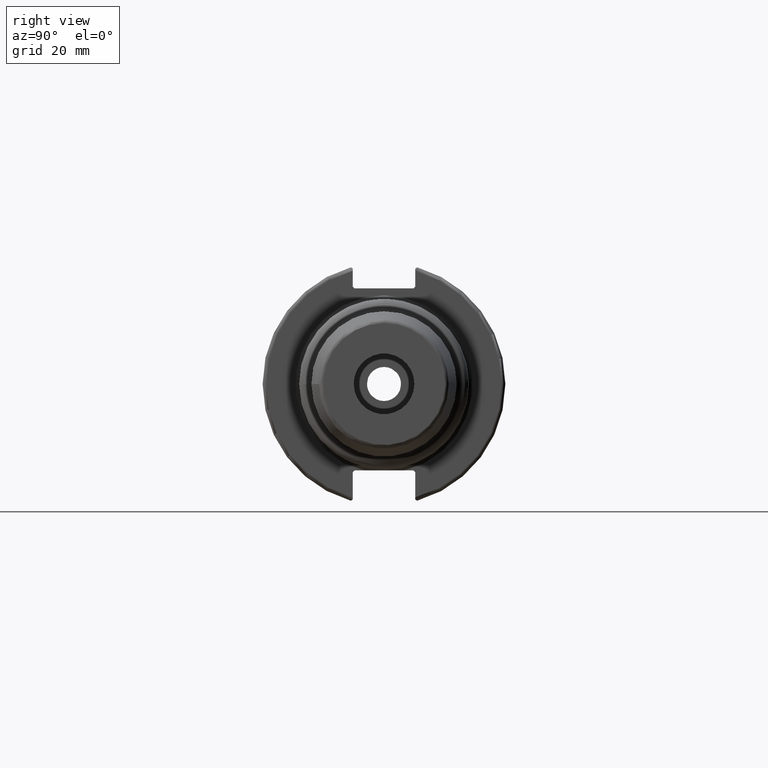
[diagram: clean part render]
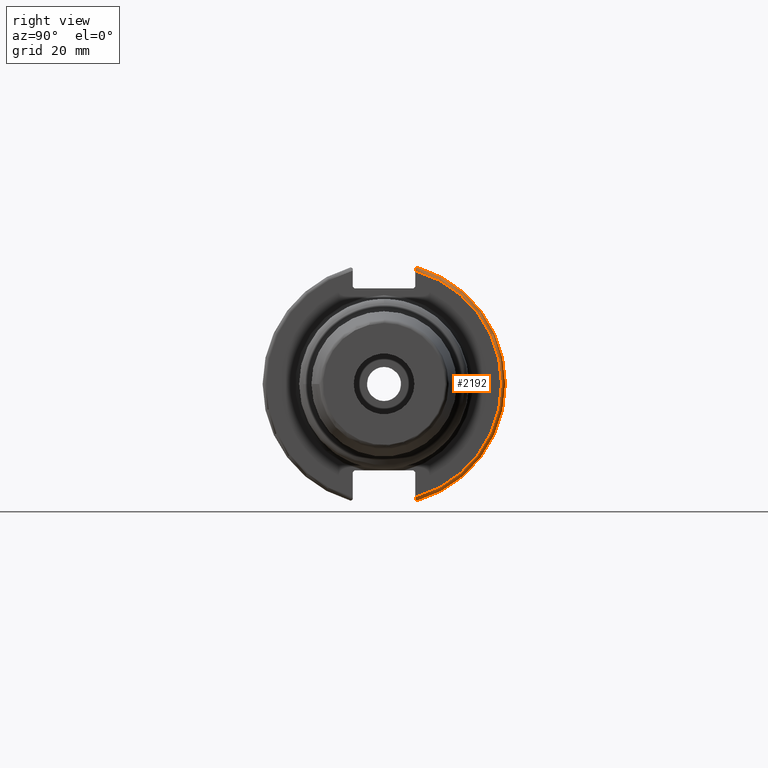
[diagram: same view with one face highlighted and labeled with its STEP entity id]
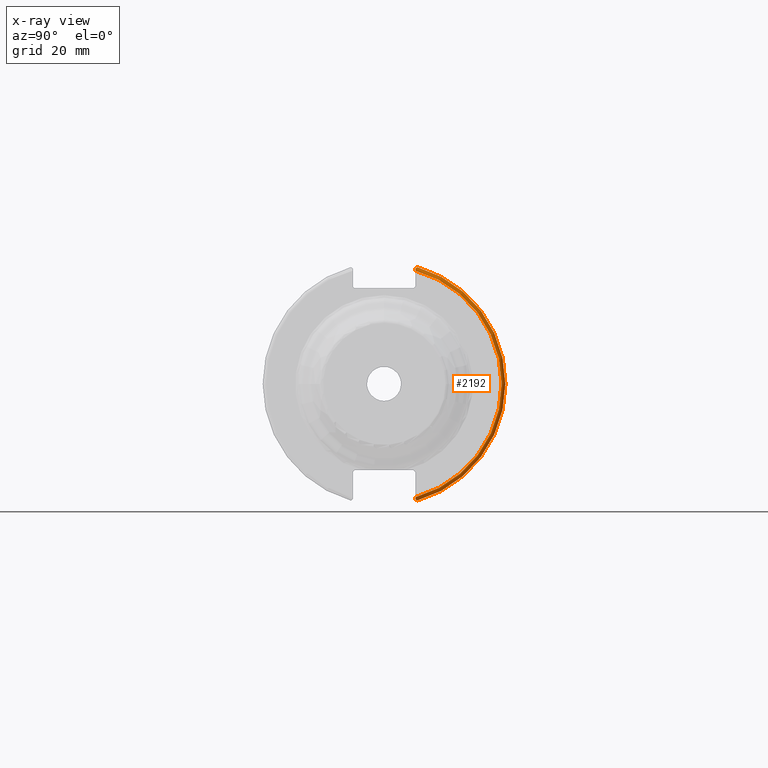
[diagram: x-ray of the same camera — body ghosted, the highlighted face saturated]
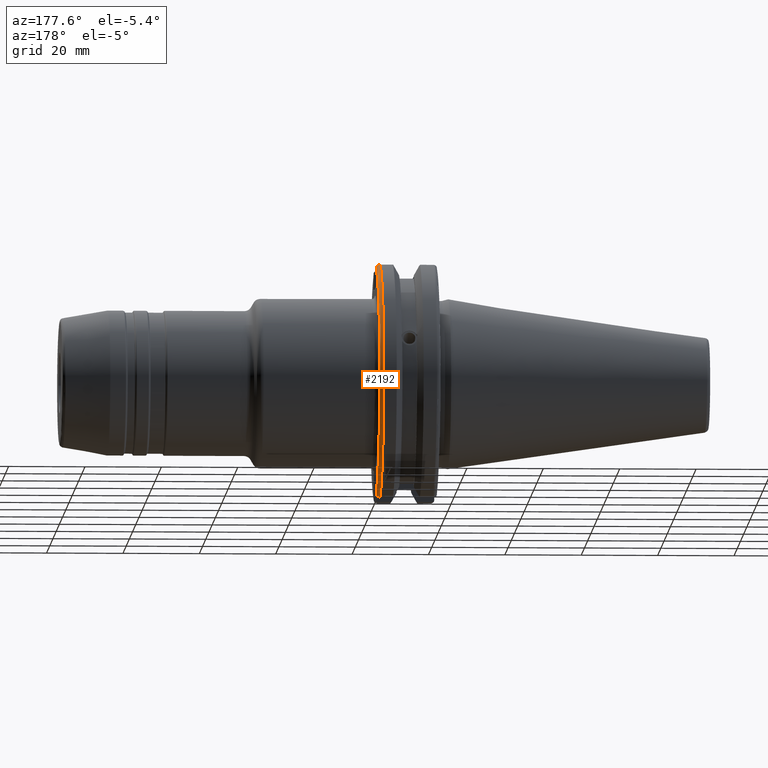
[diagram: same view with one face highlighted and labeled with its STEP entity id]
A machine part, right view. The second image highlights one B-rep face of the part: STEP entity #2192.
The next image is the same camera in x-ray: the body ghosted, the highlighted face saturated — about 0% of this face is hidden behind the body in this view.
A second angle (auxiliary view) of the same face is appended — the face is thin or edge-on in the first view.
In plain terms, the highlighted toroidal blend (fillet) surface has major radius 30.75 mm and minor (blend) radius 1 mm.
Its self-contained STEP definition (entity closure, byte-faithful):
#118=TOROIDAL_SURFACE('',#2486,30.75,1.);
#154=B_SPLINE_CURVE_WITH_KNOTS('',3,(#3989,#3990,#3991,#3992,#3993,#3994),
 .UNSPECIFIED.,.F.,.F.,(4,2,4),(0.0977210450333169,0.111963554372601,0.150804064902975),
 .UNSPECIFIED.);
#155=B_SPLINE_CURVE_WITH_KNOTS('',3,(#3998,#3999,#4000,#4001,#4002,#4003),
 .UNSPECIFIED.,.F.,.F.,(4,2,4),(0.452741154494497,0.491581665024871,0.505824174364157),
 .UNSPECIFIED.);
#156=B_SPLINE_CURVE_WITH_KNOTS('',3,(#4005,#4006,#4007,#4008,#4009,#4010,
#4011,#4012),.UNSPECIFIED.,.F.,.F.,(4,2,2,4),(-0.104302157163828,-0.0778717450894463,
-0.0364423539742873,0.),.UNSPECIFIED.);
#157=B_SPLINE_CURVE_WITH_KNOTS('',3,(#4015,#4016,#4017,#4018,#4019,#4020,
#4021,#4022),.UNSPECIFIED.,.F.,.F.,(4,2,2,4),(0.,0.0343524753874978,0.0729784742461449,
0.104180282751877),.UNSPECIFIED.);
#234=FACE_OUTER_BOUND('',#354,.T.);
#354=EDGE_LOOP('',(#1841,#1842,#1843,#1844,#1845,#1846));
#759=CIRCLE('',#2487,30.75);
#760=CIRCLE('',#2488,31.75);
#981=VERTEX_POINT('',#3987);
#982=VERTEX_POINT('',#3988);
#983=VERTEX_POINT('',#3995);
#984=VERTEX_POINT('',#3997);
#985=VERTEX_POINT('',#4004);
#986=VERTEX_POINT('',#4013);
#1289=EDGE_CURVE('',#981,#982,#154,.T.);
#1290=EDGE_CURVE('',#982,#983,#759,.T.);
#1291=EDGE_CURVE('',#983,#984,#155,.T.);
#1292=EDGE_CURVE('',#984,#985,#156,.T.);
#1293=EDGE_CURVE('',#985,#986,#760,.T.);
#1294=EDGE_CURVE('',#986,#981,#157,.T.);
#1841=ORIENTED_EDGE('',*,*,#1289,.T.);
#1842=ORIENTED_EDGE('',*,*,#1290,.T.);
#1843=ORIENTED_EDGE('',*,*,#1291,.T.);
#1844=ORIENTED_EDGE('',*,*,#1292,.T.);
#1845=ORIENTED_EDGE('',*,*,#1293,.T.);
#1846=ORIENTED_EDGE('',*,*,#1294,.T.);
#2192=ADVANCED_FACE('',(#234),#118,.T.);
#2486=AXIS2_PLACEMENT_3D('',#3986,#3082,#3083);
#2487=AXIS2_PLACEMENT_3D('',#3996,#3084,#3085);
#2488=AXIS2_PLACEMENT_3D('',#4014,#3086,#3087);
#3082=DIRECTION('center_axis',(1.,0.,0.));
#3083=DIRECTION('ref_axis',(0.,0.,-1.));
#3084=DIRECTION('center_axis',(-1.,0.,0.));
#3085=DIRECTION('ref_axis',(0.,1.,-6.12323399573677E-17));
#3086=DIRECTION('center_axis',(1.,0.,0.));
#3087=DIRECTION('ref_axis',(0.,1.,-6.12323399573677E-17));
#3986=CARTESIAN_POINT('Origin',(18.05,0.,0.));
#3987=CARTESIAN_POINT('',(18.9058722749097,8.19,30.1755016258903));
#3988=CARTESIAN_POINT('',(19.05,8.19,29.6392712461019));
#3989=CARTESIAN_POINT('Ctrl Pts',(18.9058722749097,8.19,30.1755016258903));
#3990=CARTESIAN_POINT('Ctrl Pts',(18.9318163728133,8.19,30.131014531546));
#3991=CARTESIAN_POINT('Ctrl Pts',(18.9539643471756,8.19,30.0852355256475));
#3992=CARTESIAN_POINT('Ctrl Pts',(19.020485567083,8.19,29.9212724384851));
#3993=CARTESIAN_POINT('Ctrl Pts',(19.05,8.19,29.7687396145364));
#3994=CARTESIAN_POINT('Ctrl Pts',(19.05,8.19,29.6392712461019));
#3995=CARTESIAN_POINT('',(19.05,8.19,-29.6392712461019));
#3996=CARTESIAN_POINT('Origin',(19.05,0.,0.));
#3997=CARTESIAN_POINT('',(18.9058722749097,8.19,-30.1755016258903));
#3998=CARTESIAN_POINT('Ctrl Pts',(19.05,8.19,-29.6392712461019));
#3999=CARTESIAN_POINT('Ctrl Pts',(19.05,8.19,-29.7687396145364));
#4000=CARTESIAN_POINT('Ctrl Pts',(19.0204855670831,8.19,-29.9212724384851));
#4001=CARTESIAN_POINT('Ctrl Pts',(18.9539643471756,8.19,-30.0852355256475));
#4002=CARTESIAN_POINT('Ctrl Pts',(18.9318163728133,8.19,-30.131014531546));
#4003=CARTESIAN_POINT('Ctrl Pts',(18.9058722749097,8.19,-30.1755016258903));
#4004=CARTESIAN_POINT('',(18.05,8.67204822802685,-30.5427254764662));
#4005=CARTESIAN_POINT('Ctrl Pts',(18.9058722749097,8.19,-30.1755016258903));
#4006=CARTESIAN_POINT('Ctrl Pts',(18.8644673620074,8.25871605728282,-30.2278494485451));
#4007=CARTESIAN_POINT('Ctrl Pts',(18.8119751533981,8.32529543089522,-30.2785695477496));
#4008=CARTESIAN_POINT('Ctrl Pts',(18.6711011886212,8.46607530335799,-30.3858155116254));
#4009=CARTESIAN_POINT('Ctrl Pts',(18.545044361706,8.551646780666,-30.4510037761381));
#4010=CARTESIAN_POINT('Ctrl Pts',(18.3129472218859,8.64410239894262,-30.5214363722497));
#4011=CARTESIAN_POINT('Ctrl Pts',(18.1714745132476,8.67204822802685,-30.5427254764662));
#4012=CARTESIAN_POINT('Ctrl Pts',(18.05,8.67204822802685,-30.5427254764662));
#4013=CARTESIAN_POINT('',(18.05,8.67204822802685,30.5427254764662));
#4014=CARTESIAN_POINT('Origin',(18.05,0.,0.));
#4015=CARTESIAN_POINT('Ctrl Pts',(18.05,8.67204822802685,30.5427254764662));
#4016=CARTESIAN_POINT('Ctrl Pts',(18.1645082512917,8.67204822802685,30.5427254764662));
#4017=CARTESIAN_POINT('Ctrl Pts',(18.2983170433775,8.6471881193939,30.5237870709558));
#4018=CARTESIAN_POINT('Ctrl Pts',(18.5184414294771,8.56482138642532,30.4610401774263));
#4019=CARTESIAN_POINT('Ctrl Pts',(18.6396724190507,8.48862804755883,30.4029961692546));
#4020=CARTESIAN_POINT('Ctrl Pts',(18.7926702662319,8.34909446036477,30.2966996242308));
#4021=CARTESIAN_POINT('Ctrl Pts',(18.8574463042989,8.27036828330781,30.2367261024977));
#4022=CARTESIAN_POINT('Ctrl Pts',(18.9058722749097,8.19,30.1755016258903));